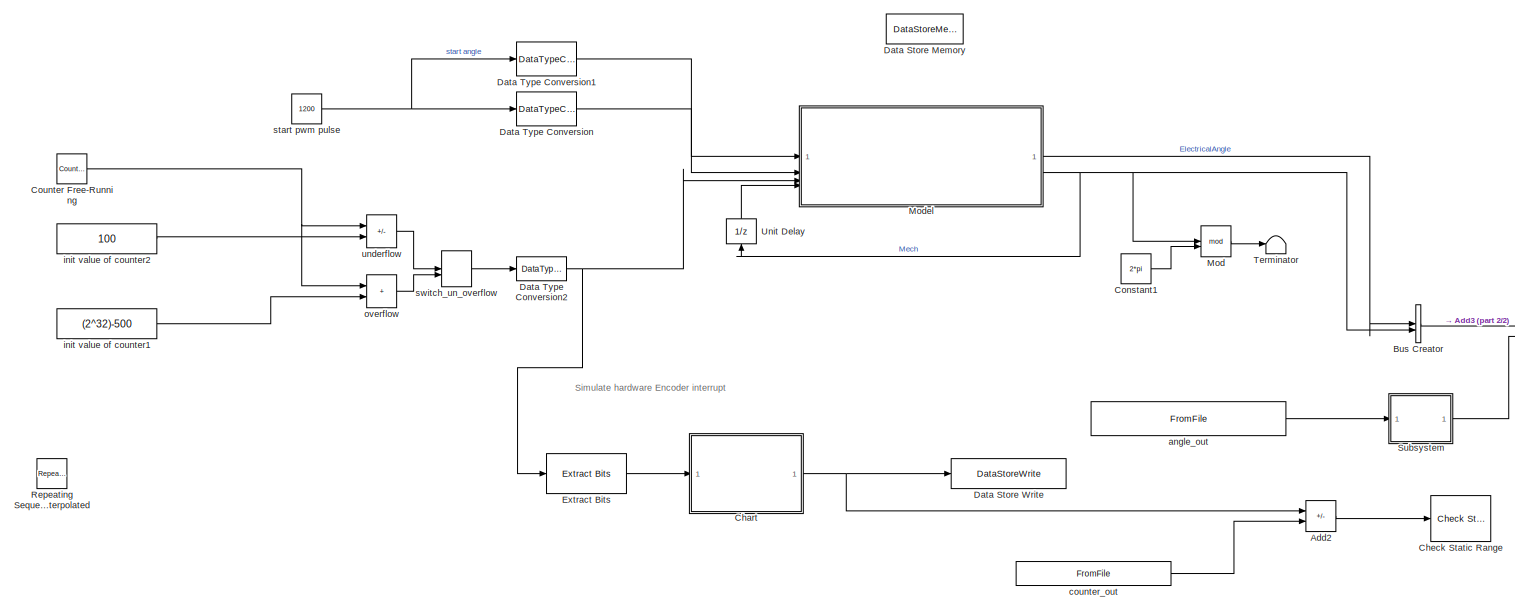
[diagram: root canvas - part 1/2, most of the canvas]
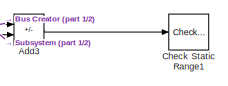
[diagram: root canvas - part 2/2, middle right region]
MODEL slx_eae34a8c9ef2
KIND model
CONFIG AbsTol = auto
CONFIG EnableMultiTasking = off
CONFIG FixedStep = 200e-6
CONFIG MaxStep = auto
CONFIG MinStep = auto
CONFIG RelTol = 1e-3
CONFIG SampleTimeConstraint = Unconstrained
CONFIG SolverName = FixedStepDiscrete
CONFIG StartTime = 0.0
CONFIG StopTime = 10
BLOCK [Sum] Add2
  IconShape = rectangular
  Inputs = -+
BLOCK [Sum] Add3
  IconShape = rectangular
  Inputs = -+
BLOCK [BusCreator] Bus Creator
  DisplayOption = bar
  InheritFromInputs = off
  Inputs = 2
  OutDataTypeStr = Bus: AngleBusObj
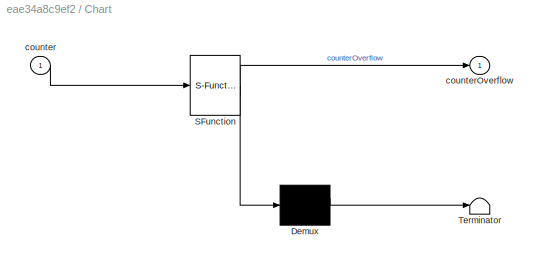
BLOCK [SubSystem] Chart
  ErrorFcn = Stateflow.Translate.translate
  PermitHierarchicalResolution = ExplicitOnly
  SFBlockType = Chart
  TreatAsAtomicUnit = on
BLOCK [Demux] Chart/ Demux 
  Outputs = 1
BLOCK [S-Function] Chart/ SFunction 
  EnableBusSupport = on
  FunctionName = sf_sfun
  PortCounts = [1 2]
  SFcnIsStateOwnerBlock = off
  SFunctionDeploymentMode = off
  Tag = Stateflow S-Function 3
BLOCK [Terminator] Chart/ Terminator 
BLOCK [Inport] Chart/counter
BLOCK [Outport] Chart/counterOverflow
BLOCK [Reference] Check Static Range  REF=simulink/Model
Verification/Check 
Static Range
  Description = -0.1 <= u <= 0.1
  SourceBlock = simulink/Model\nVerification/Check \nStatic Range
  SourceType = Checks_SRange
BLOCK [Reference] Check Static Range1  REF=simulink/Model
Verification/Check 
Static Range
  Description = -0.1 <= u <= 0.1
  SourceBlock = simulink/Model\nVerification/Check \nStatic Range
  SourceType = Checks_SRange
BLOCK [Constant] Constant1
  OutDataTypeStr = single
  Value = 2*pi
BLOCK [Reference] Counter Free-Running  REF=simulink/Sources/Counter
Free-Running
  SourceBlock = simulink/Sources/Counter\nFree-Running
  SourceType = Counter Free-Running
BLOCK [DataStoreMemory] Data Store Memory
  DataStoreName = EncoderCounterHasOverflowed
  ReadBeforeWriteMsg = warning
  ShowAdditionalParam = off
  StateMustResolveToSignalObject = on
  WriteAfterReadMsg = warning
  WriteAfterWriteMsg = warning
BLOCK [DataStoreWrite] Data Store Write
  DataStoreName = EncoderCounterHasOverflowed
  IndexOptions = Index vector (dialog)
  Indices = 1
  OutputSizes = 1
BLOCK [DataTypeConversion] Data Type Conversion
  RndMeth = Floor
  SaturateOnIntegerOverflow = off
BLOCK [DataTypeConversion] Data Type Conversion1
  RndMeth = Floor
  SaturateOnIntegerOverflow = off
BLOCK [DataTypeConversion] Data Type Conversion2
  RndMeth = Floor
  SaturateOnIntegerOverflow = off
BLOCK [Reference] Extract Bits  REF=simulink/Logic and Bit
Operations/Extract Bits
  SourceBlock = simulink/Logic and Bit\nOperations/Extract Bits
  SourceType = Extract Bits
BLOCK [Math] Mod
  Operator = mod
  OutputSignalType = real
BLOCK [ModelReference] Model
  ModelNameDialog = ConvertPWMtoAngle.slx
  ModelReferenceVersion = 7.3
BLOCK [Reference] Repeating Sequence Interpolated  REF=simulink/Sources/Repeating
Sequence
Interpolated
  Commented = on
  SourceBlock = simulink/Sources/Repeating\nSequence\nInterpolated
  SourceType = Repeating Sequence Interpolated
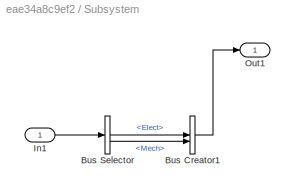
BLOCK [SubSystem] Subsystem
BLOCK [BusCreator] Subsystem/Bus Creator1
  DisplayOption = bar
  InheritFromInputs = on
  Inputs = 2
BLOCK [BusSelector] Subsystem/Bus Selector
  OutputSignals = Elect,Mech
BLOCK [Inport] Subsystem/In1
BLOCK [Outport] Subsystem/Out1
BLOCK [Terminator] Terminator
BLOCK [UnitDelay] Unit Delay
  HasFrameUpgradeWarning = on
  NameLocation = right
  SampleTime = -1
BLOCK [FromFile] angle_out
  FileName = results_counter_underflow_angle_out.mat
  OutDataTypeStr = Bus: AngleBusObj
BLOCK [FromFile] counter_out
  FileName = results_counter_underflow_out.mat
BLOCK [Constant] init value of counter1
  OutDataTypeStr = uint32
  Value = (2^32)-500
BLOCK [Constant] init value of counter2
  OutDataTypeStr = uint32
  Value = 100
BLOCK [Sum] overflow
  IconShape = rectangular
  OutDataTypeStr = uint32
BLOCK [Constant] start pwm pulse
  OutMax = 2^12-1
  Value = 1200
BLOCK [ManualSwitch] switch_un_overflow
BLOCK [Sum] underflow
  IconShape = rectangular
  Inputs = -+
  OutDataTypeStr = uint32
ANNOTATION (root): Simulate hardware Encoder interrupt
LINE Add2:1 -> Check Static Range:1
LINE Add3:1 -> Check Static Range1:1
LINE Bus Creator:1 -> Add3:1
NET Chart:1 -> Add2:1, Data Store Write:1
LINE Constant1:1 -> Mod:2
NET Counter Free-Running:1 -> overflow:1, underflow:1
LINE Data Type Conversion1:1 -> Model:1
NET Data Type Conversion2:1 -> Extract Bits:1, Model:3
LINE Data Type Conversion:1 -> Model:2
LINE Extract Bits:1 -> Chart:1
LINE Mod:1 -> Terminator:1
LINE Model:1 -> Bus Creator:1
NET Model:2 -> Bus Creator:2, Mod:1, Unit Delay:1
LINE Subsystem/Bus Creator1:1 -> Subsystem/Out1:1
LINE Subsystem/Bus Selector:1 -> Subsystem/Bus Creator1:1
LINE Subsystem/Bus Selector:2 -> Subsystem/Bus Creator1:2
LINE Subsystem/In1:1 -> Subsystem/Bus Selector:1
LINE Subsystem:1 -> Add3:2
LINE Unit Delay:1 -> Model:4
LINE angle_out:1 -> Subsystem:1
LINE counter_out:1 -> Add2:2
LINE init value of counter1:1 -> overflow:2
LINE init value of counter2:1 -> underflow:2
LINE overflow:1 -> switch_un_overflow:2
NET start pwm pulse:1 -> Data Type Conversion1:1, Data Type Conversion:1
LINE switch_un_overflow:1 -> Data Type Conversion2:1
LINE underflow:1 -> switch_un_overflow:1
note: NET lines group one-source signal fan-out (src -> all destinations, sorted); 1:1 wires keep LINE
CHART Chart states=5 transitions=8
  STATE_LABEL 'pot_underflow\n\nen:counterOld=counter;\ndu:counterOld=counter;'
  STATE_LABEL 'init_state\n\nen: counterOverflow=0;\n'
  STATE_LABEL 'pot_overflow\n'
  STATE_LABEL 'Counter_overflow1\n\nen: counterOverflow=1;'
  STATE_LABEL 'underflow\n\nen: counterOverflow=1;\n'
CHART  states=0 transitions=0
